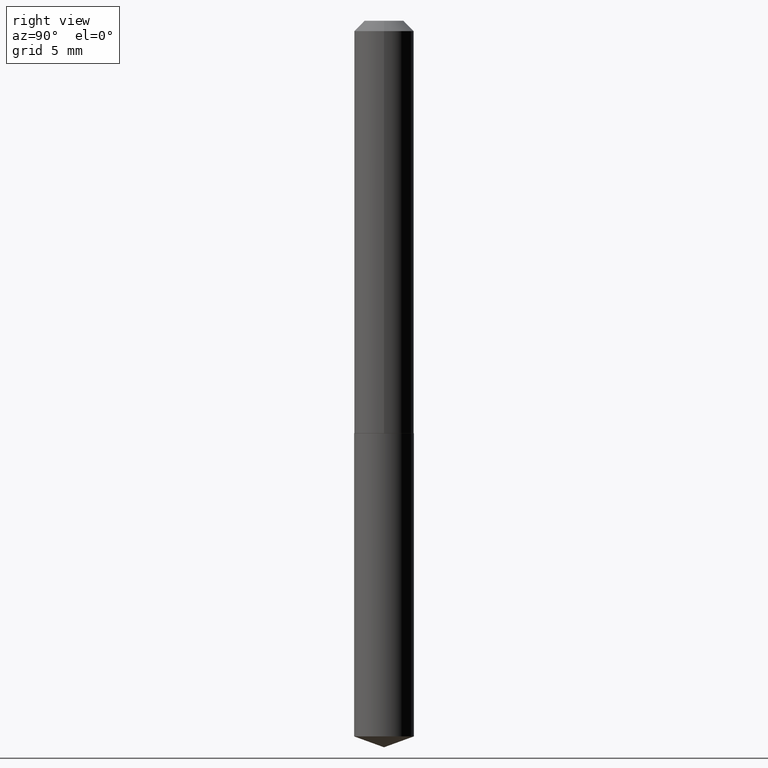
[diagram: clean part render]
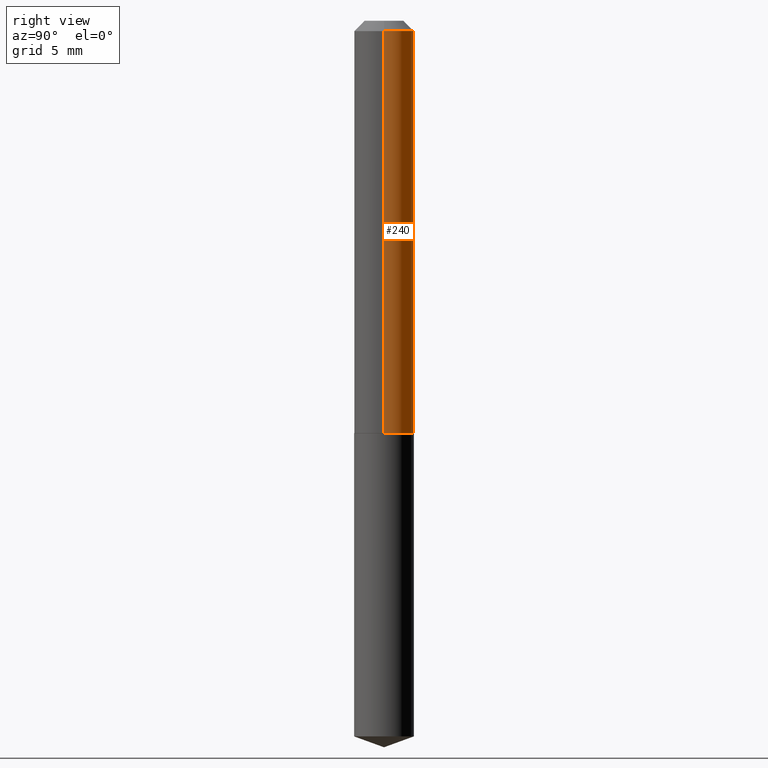
[diagram: same view with one face highlighted and labeled with its STEP entity id]
A machine part, right view. The second image highlights one B-rep face of the part: STEP entity #240.
In plain terms, the highlighted cylindrical surface (edge-blend (fillet) strip) has radius 2.286 mm, axis along (-0, 0, 1).
Its self-contained STEP definition (entity closure, byte-faithful):
#5 = CARTESIAN_POINT ( 'NONE',  ( 0.08999999999999999667, -7.375754328306130652E-16, -0.03125000000000020817 ) ) ;
#18 = CARTESIAN_POINT ( 'NONE',  ( -0.09000000000000006606, 6.394884621840906367E-16, -4.427041581229418623E-30 ) ) ;
#37 = VECTOR ( 'NONE', #341, 39.37007874015748143 ) ;
#42 = CARTESIAN_POINT ( 'NONE',  ( 7.642090019328602662E-31, -1.091087918388490267E-16, -0.03125000000000020817 ) ) ;
#53 = AXIS2_PLACEMENT_3D ( 'NONE', #129, #308, #122 ) ;
#56 = ORIENTED_EDGE ( 'NONE', *, *, #295, .F. ) ;
#60 = DIRECTION ( 'NONE',  ( 1.000000000000000000, -6.982962677686266711E-15, 0.000000000000000000 ) ) ;
#64 = AXIS2_PLACEMENT_3D ( 'NONE', #42, #280, #60 ) ;
#73 = VERTEX_POINT ( 'NONE', #220 ) ;
#84 = VERTEX_POINT ( 'NONE', #5 ) ;
#94 = DIRECTION ( 'NONE',  ( -2.445468806185136597E-29, 3.491481338843145583E-15, 1.000000000000000000 ) ) ;
#122 = DIRECTION ( 'NONE',  ( 1.000000000000000000, -6.982962677686266711E-15, 4.876176775795935793E-29 ) ) ;
#126 = VERTEX_POINT ( 'NONE', #261 ) ;
#129 = CARTESIAN_POINT ( 'NONE',  ( 0.000000000000000000, 0.000000000000000000, 0.000000000000000000 ) ) ;
#134 = AXIS2_PLACEMENT_3D ( 'NONE', #247, #94, #271 ) ;
#141 = CARTESIAN_POINT ( 'NONE',  ( 0.09000000000000013545, -4.964886463834952576E-15, -1.242000000000000215 ) ) ;
#165 = EDGE_LOOP ( 'NONE', ( #385, #347, #56, #219 ) ) ;
#184 = VERTEX_POINT ( 'NONE', #141 ) ;
#194 = CARTESIAN_POINT ( 'NONE',  ( 0.09000000000000006606, -6.284666409917644575E-16, 4.388559098216345437E-30 ) ) ;
#195 = LINE ( 'NONE', #18, #37 ) ;
#198 = DIRECTION ( 'NONE',  ( -2.445468806185136877E-29, 3.491481338843145188E-15, 1.000000000000000000 ) ) ;
#203 = EDGE_CURVE ( 'NONE', #73, #126, #195, .T. ) ;
#205 = CIRCLE ( 'NONE', #134, 0.09000000000000013545 ) ;
#219 = ORIENTED_EDGE ( 'NONE', *, *, #264, .F. ) ;
#220 = CARTESIAN_POINT ( 'NONE',  ( -0.09000000000000013545, -3.696931360659096890E-15, -1.242000000000000215 ) ) ;
#240 = ADVANCED_FACE ( 'NONE', ( #305 ), #333, .T. ) ;
#247 = CARTESIAN_POINT ( 'NONE',  ( 3.037272257281940407E-29, -4.336419822843187625E-15, -1.242000000000000215 ) ) ;
#248 = CIRCLE ( 'NONE', #64, 0.08999999999999999667 ) ;
#261 = CARTESIAN_POINT ( 'NONE',  ( -0.08999999999999999667, -1.583275845156927233E-15, -0.03125000000000020817 ) ) ;
#264 = EDGE_CURVE ( 'NONE', #184, #84, #387, .T. ) ;
#271 = DIRECTION ( 'NONE',  ( 1.000000000000000000, -6.982962677686263555E-15, 0.000000000000000000 ) ) ;
#280 = DIRECTION ( 'NONE',  ( -2.445468806185136597E-29, 3.491481338843145583E-15, 1.000000000000000000 ) ) ;
#295 = EDGE_CURVE ( 'NONE', #84, #126, #248, .T. ) ;
#305 = FACE_OUTER_BOUND ( 'NONE', #165, .T. ) ;
#308 = DIRECTION ( 'NONE',  ( -2.445468806185136597E-29, 3.491481338843145583E-15, 1.000000000000000000 ) ) ;
#312 = VECTOR ( 'NONE', #198, 39.37007874015748143 ) ;
#333 = CYLINDRICAL_SURFACE ( 'NONE', #53, 0.09000000000000006606 ) ;
#337 = EDGE_CURVE ( 'NONE', #184, #73, #205, .T. ) ;
#341 = DIRECTION ( 'NONE',  ( -2.445468806185136877E-29, 3.491481338843145188E-15, 1.000000000000000000 ) ) ;
#347 = ORIENTED_EDGE ( 'NONE', *, *, #203, .T. ) ;
#385 = ORIENTED_EDGE ( 'NONE', *, *, #337, .T. ) ;
#387 = LINE ( 'NONE', #194, #312 ) ;